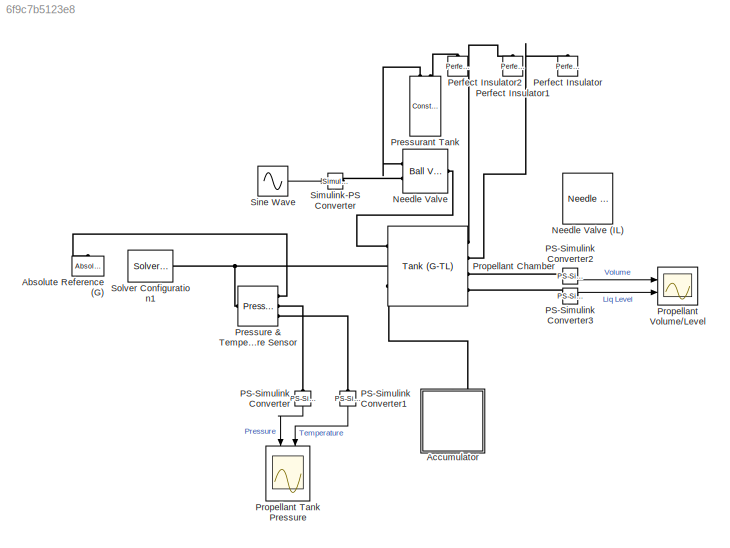
MODEL slx_6f9c7b5123e8
KIND model
CONFIG AbsTol = auto
CONFIG EnableMultiTasking = off
CONFIG FixedStep = auto
CONFIG MaxStep = auto
CONFIG MinStep = auto
CONFIG RelTol = 1e-3
CONFIG SampleTimeConstraint = Unconstrained
CONFIG Solver = VariableStepAuto
CONFIG SolverName = VariableStepAuto
CONFIG StartTime = 0.0
CONFIG StopTime = 20
BLOCK [Reference] Absolute Reference (G)  REF=fl_lib/Gas/Elements/Absolute Reference
(G)
  NameLocation = right
  Ports = [0, 0, 0, 0, 0, 1]
  SourceBlock = fl_lib/Gas/Elements/Absolute Reference\n(G)
  SourceProductBaseCode = SS
  SourceType = Absolute Reference\n(G)
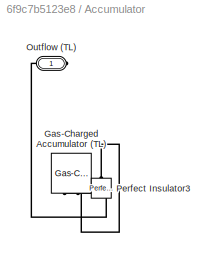
BLOCK [SubSystem] Accumulator
  NameLocation = right
  Ports = [0, 0, 0, 0, 0, 0, 1]
  RequestExecContextInheritance = off
BLOCK [PMIOPort] Accumulator/ Outflow (TL)
  Side = Right
BLOCK [Reference] Accumulator/Gas-Charged Accumulator (TL)  REF=SimscapeFluids_lib/Thermal Liquid/Tanks & Accumulators/Gas-Charged
Accumulator (TL)
  NameLocation = right
  Ports = [0, 0, 0, 0, 0, 0, 2]
  SourceBlock = SimscapeFluids_lib/Thermal Liquid/Tanks & Accumulators/Gas-Charged\nAccumulator (TL)
  SourceProductBaseCode = SH
  SourceType = Gas-Charged\nAccumulator (TL)
BLOCK [Reference] Accumulator/Perfect Insulator3  REF=fl_lib/Thermal/Thermal Elements/Perfect Insulator
  NameLocation = right
  Ports = [0, 0, 0, 0, 0, 1]
  SourceBlock = fl_lib/Thermal/Thermal Elements/Perfect Insulator
  SourceProductBaseCode = SS
  SourceType = Perfect Insulator
BLOCK [Reference] Needle Valve  REF=SimscapeFluids_lib/Gas/Valves & Orifices/Flow Control Valves/Ball Valve (G)
  Ports = [0, 0, 0, 0, 0, 2, 1]
  SourceBlock = SimscapeFluids_lib/Gas/Valves & Orifices/Flow Control Valves/Ball Valve (G)
  SourceProductBaseCode = SH
  SourceType = Ball Valve (G)
BLOCK [Reference] Needle Valve (IL)  REF=SimscapeFluids_lib/Isothermal Liquid/Valves & Orifices/Flow Control Valves/Needle Valve (IL)
  Ports = [0, 0, 0, 0, 0, 2, 1]
  SourceBlock = SimscapeFluids_lib/Isothermal Liquid/Valves & Orifices/Flow Control Valves/Needle Valve (IL)
  SourceProductBaseCode = SH
  SourceType = Needle Valve (IL)
BLOCK [Reference] PS-Simulink Converter  REF=nesl_utility/PS-Simulink
Converter
  NameLocation = left
  Ports = [0, 1, 0, 0, 0, 1]
  SourceBlock = nesl_utility/PS-Simulink\nConverter
  SourceProductBaseCode = SS
  SourceType = PS-Simulink\nConverter
BLOCK [Reference] PS-Simulink Converter1  REF=nesl_utility/PS-Simulink
Converter
  NameLocation = left
  Ports = [0, 1, 0, 0, 0, 1]
  SourceBlock = nesl_utility/PS-Simulink\nConverter
  SourceProductBaseCode = SS
  SourceType = PS-Simulink\nConverter
BLOCK [Reference] PS-Simulink Converter2  REF=nesl_utility/PS-Simulink
Converter
  Ports = [0, 1, 0, 0, 0, 1]
  SourceBlock = nesl_utility/PS-Simulink\nConverter
  SourceProductBaseCode = SS
  SourceType = PS-Simulink\nConverter
BLOCK [Reference] PS-Simulink Converter3  REF=nesl_utility/PS-Simulink
Converter
  Ports = [0, 1, 0, 0, 0, 1]
  SourceBlock = nesl_utility/PS-Simulink\nConverter
  SourceProductBaseCode = SS
  SourceType = PS-Simulink\nConverter
BLOCK [Reference] Perfect Insulator  REF=fl_lib/Thermal/Thermal Elements/Perfect Insulator
  NameLocation = right
  Ports = [0, 0, 0, 0, 0, 1]
  SourceBlock = fl_lib/Thermal/Thermal Elements/Perfect Insulator
  SourceProductBaseCode = SS
  SourceType = Perfect Insulator
BLOCK [Reference] Perfect Insulator1  REF=fl_lib/Thermal/Thermal Elements/Perfect Insulator
  NameLocation = right
  Ports = [0, 0, 0, 0, 0, 1]
  SourceBlock = fl_lib/Thermal/Thermal Elements/Perfect Insulator
  SourceProductBaseCode = SS
  SourceType = Perfect Insulator
BLOCK [Reference] Perfect Insulator2  REF=fl_lib/Thermal/Thermal Elements/Perfect Insulator
  NameLocation = right
  Ports = [0, 0, 0, 0, 0, 1]
  SourceBlock = fl_lib/Thermal/Thermal Elements/Perfect Insulator
  SourceProductBaseCode = SS
  SourceType = Perfect Insulator
BLOCK [Reference] Pressurant Tank  REF=fl_lib/Gas/Elements/Constant Volume
Chamber (G)
  NameLocation = right
  Ports = [0, 0, 0, 0, 0, 2]
  SourceBlock = fl_lib/Gas/Elements/Constant Volume\nChamber (G)
  SourceProductBaseCode = SS
  SourceType = Constant Volume\nChamber (G)
BLOCK [Reference] Pressure & Temperature Sensor   REF=fl_lib/Gas/Sensors/Pressure &
Temperature Sensor
(G)
  Ports = [0, 0, 0, 0, 0, 1, 3]
  SourceBlock = fl_lib/Gas/Sensors/Pressure &\nTemperature Sensor\n(G)
  SourceProductBaseCode = SS
  SourceType = Pressure &\nTemperature Sensor\n(G)
BLOCK [Reference] Propellant Chamber  REF=SimscapeFluids_lib/Fluid Network
Interfaces/Tanks & Accumulators/Tank (G-TL)
  Ports = [0, 0, 0, 0, 0, 3, 4]
  SourceBlock = SimscapeFluids_lib/Fluid Network\nInterfaces/Tanks & Accumulators/Tank (G-TL)
  SourceProductBaseCode = SH
  SourceType = Tank (G-TL)
BLOCK [Scope] Propellant Tank Pressure
  Floating = off
  NameLocation = left
  NumInputPorts = 2
  Ports = [2]
  ScopeSpecificationString = Simulink.scopes.TimeScopeBlockCfg('CurrentConfiguration', extmgr.ConfigurationSet(extmgr.Configuration('Core','General UI',true),extmgr.Configuration('Core','Source UI',true),extmgr.Configuration('Sources','WiredSimulink',true),extmgr.Configuration('Visuals','Time Domain',true,'SerializedDisplays',{struct('MinYLimReal','881802.43695','MaxYLimReal','2063778.06743','YLabelReal','','MinYLimMag','8818...<+2073ch>
BLOCK [Scope] Propellant Volume//Level
  Floating = off
  NumInputPorts = 2
  Ports = [2]
  ScopeSpecificationString = Simulink.scopes.TimeScopeBlockCfg('CurrentConfiguration', extmgr.ConfigurationSet(extmgr.Configuration('Core','General UI',true),extmgr.Configuration('Core','Source UI',true),extmgr.Configuration('Sources','WiredSimulink',true,'DataLoggingVariableName','ScopeData1'),extmgr.Configuration('Visuals','Time Domain',true,'SerializedDisplays',{struct('MinYLimReal','0.01987','MaxYLimReal','0.02002','YLabe...<+2086ch>
BLOCK [Reference] Simulink-PS Converter  REF=nesl_utility/Simulink-PS
Converter
  Ports = [1, 0, 0, 0, 0, 0, 1]
  SourceBlock = nesl_utility/Simulink-PS\nConverter
  SourceProductBaseCode = SS
  SourceType = Simulink-PS\nConverter
BLOCK [Sin] Sine Wave
  Ports = [0, 1]
  SampleTime = 0
BLOCK [Reference] Solver Configuration1  REF=nesl_utility/Solver
Configuration
  Ports = [0, 0, 0, 0, 0, 0, 1]
  SourceBlock = nesl_utility/Solver\nConfiguration
  SourceProductBaseCode = SS
  SourceType = Solver\nConfiguration
LINE PS-Simulink Converter1:1 -> Propellant Tank Pressure:2
LINE PS-Simulink Converter2:1 -> Propellant Volume//Level:1
LINE PS-Simulink Converter3:1 -> Propellant Volume//Level:2
LINE PS-Simulink Converter:1 -> Propellant Tank Pressure:1
LINE Sine Wave:1 -> Simulink-PS Converter:1
PLINE Absolute Reference (G):LConn1 -- Pressure & Temperature Sensor :RConn1
PLINE Accumulator/ Outflow (TL):RConn1 -- Accumulator/Gas-Charged Accumulator (TL):RConn1
PLINE Accumulator/Gas-Charged Accumulator (TL):RConn2 -- Accumulator/Perfect Insulator3:LConn1
PLINE Accumulator:RConn1 -- Propellant Chamber:LConn3
PLINE Needle Valve:LConn1 -- Pressurant Tank:LConn1
PLINE Needle Valve:LConn2 -- Simulink-PS Converter:RConn1
PLINE Needle Valve:RConn1 -- Propellant Chamber:LConn1
PLINE PS-Simulink Converter1:LConn1 -- Pressure & Temperature Sensor :RConn3
PLINE PS-Simulink Converter2:LConn1 -- Propellant Chamber:RConn3
PLINE PS-Simulink Converter3:LConn1 -- Propellant Chamber:RConn4
PLINE PS-Simulink Converter:LConn1 -- Pressure & Temperature Sensor :RConn2
PLINE Perfect Insulator1:LConn1 -- Propellant Chamber:RConn1
PLINE Perfect Insulator2:LConn1 -- Pressurant Tank:LConn2
PLINE Perfect Insulator:LConn1 -- Propellant Chamber:RConn2
PNET net1: Pressure & Temperature Sensor :LConn1 -- Propellant Chamber:LConn2 -- Solver Configuration1:RConn1
note: PNET lines group multi-terminal physical nets as a canonical sorted terminal list (undirected conserving connections); 2-terminal nets keep the pairwise PLINE form
